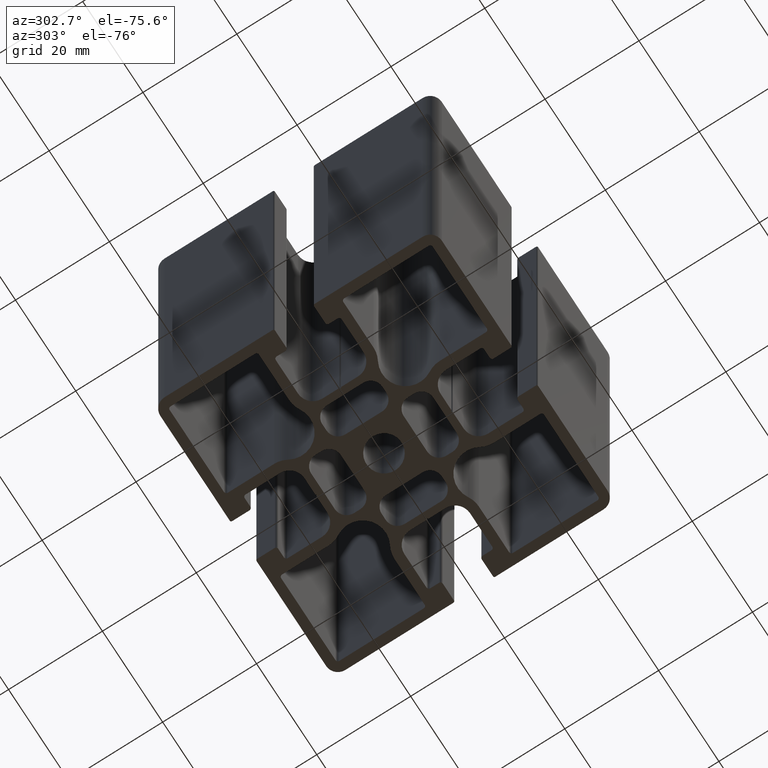
[diagram: clean part render]
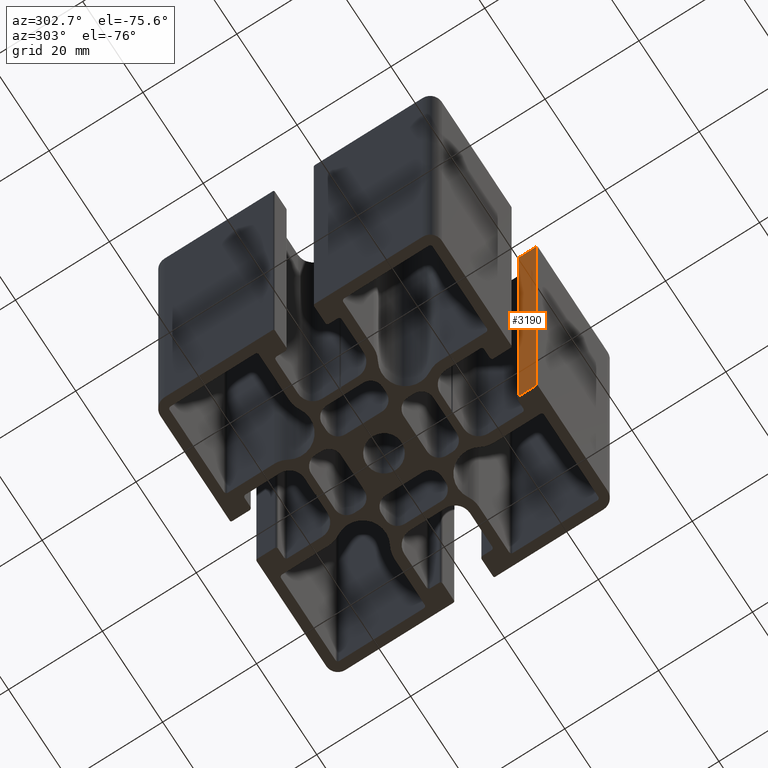
[diagram: same view with one face highlighted and labeled with its STEP entity id]
A machine part, auxiliary view. The second image highlights one B-rep face of the part: STEP entity #3190.
In plain terms, the highlighted planar face has unit normal (-1, -0, 0).
Its self-contained STEP definition (entity closure, byte-faithful):
#415=FACE_OUTER_BOUND('',#575,.T.);
#575=EDGE_LOOP('',(#2616,#2617,#2618,#2619));
#903=LINE('',#5360,#1219);
#904=LINE('',#5363,#1220);
#905=LINE('',#5365,#1221);
#906=LINE('',#5366,#1222);
#1219=VECTOR('',#4413,100.);
#1220=VECTOR('',#4416,3.6999999999999);
#1221=VECTOR('',#4417,3.6999999999999);
#1222=VECTOR('',#4418,100.);
#1534=VERTEX_POINT('',#5356);
#1535=VERTEX_POINT('',#5358);
#1536=VERTEX_POINT('',#5362);
#1537=VERTEX_POINT('',#5364);
#1997=EDGE_CURVE('',#1534,#1535,#903,.T.);
#1998=EDGE_CURVE('',#1534,#1536,#904,.T.);
#1999=EDGE_CURVE('',#1537,#1535,#905,.T.);
#2000=EDGE_CURVE('',#1536,#1537,#906,.T.);
#2616=ORIENTED_EDGE('',*,*,#1998,.F.);
#2617=ORIENTED_EDGE('',*,*,#1997,.T.);
#2618=ORIENTED_EDGE('',*,*,#1999,.F.);
#2619=ORIENTED_EDGE('',*,*,#2000,.F.);
#3034=PLANE('',#3499);
#3190=ADVANCED_FACE('',(#415),#3034,.T.);
#3499=AXIS2_PLACEMENT_3D('',#5361,#4414,#4415);
#4413=DIRECTION('',(0.,0.,1.));
#4414=DIRECTION('center_axis',(-1.,-1.10422181908667E-13,0.));
#4415=DIRECTION('ref_axis',(1.10400577568726E-13,-1.,0.));
#4416=DIRECTION('',(-1.10422181908667E-13,1.,0.));
#4417=DIRECTION('',(1.10422181908667E-13,-1.,0.));
#4418=DIRECTION('',(0.,0.,1.));
#5356=CARTESIAN_POINT('',(4.15000000000042,-29.6999999999999,0.));
#5358=CARTESIAN_POINT('',(4.15000000000042,-29.6999999999999,100.));
#5360=CARTESIAN_POINT('',(4.15000000000042,-29.6999999999999,0.));
#5361=CARTESIAN_POINT('Origin',(4.15000000000001,-26.,0.));
#5362=CARTESIAN_POINT('',(4.15000000000001,-26.,0.));
#5363=CARTESIAN_POINT('',(4.15000000000042,-29.6999999999999,0.));
#5364=CARTESIAN_POINT('',(4.15000000000001,-26.,100.));
#5365=CARTESIAN_POINT('',(4.15000000000042,-29.6999999999999,100.));
#5366=CARTESIAN_POINT('',(4.15000000000001,-26.,0.));